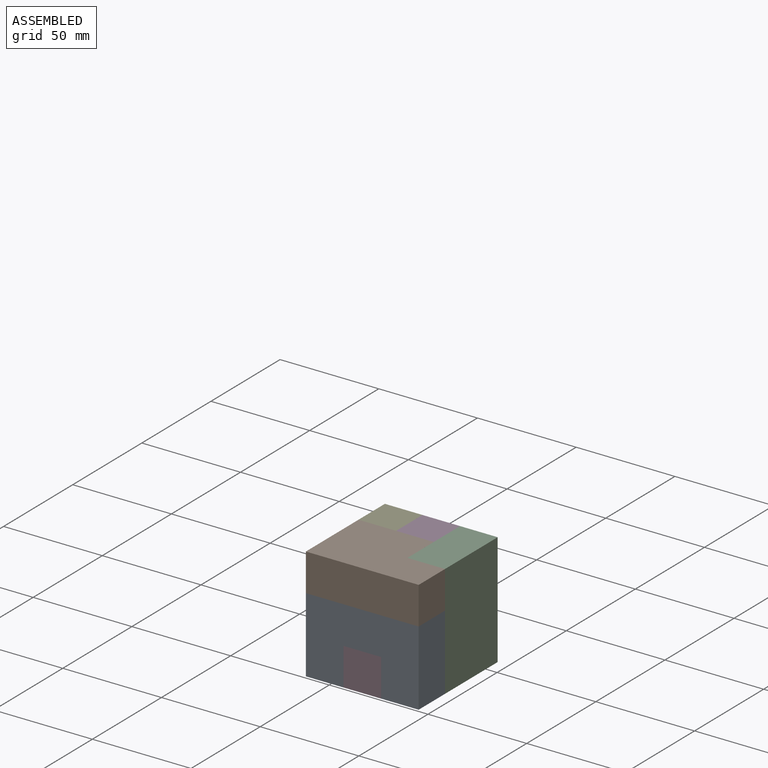
[diagram: assembled view]
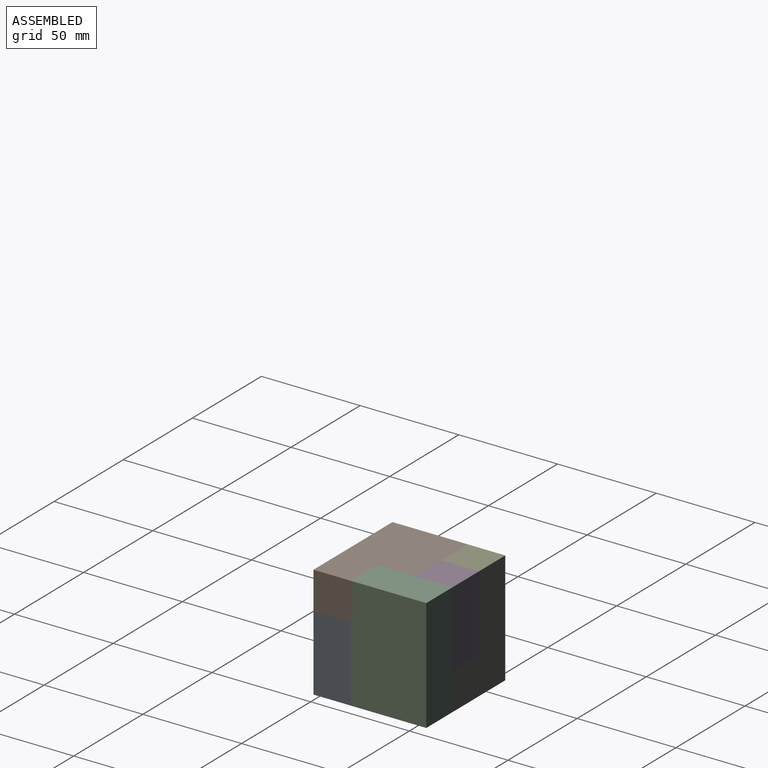
[diagram: assembled view, second angle]
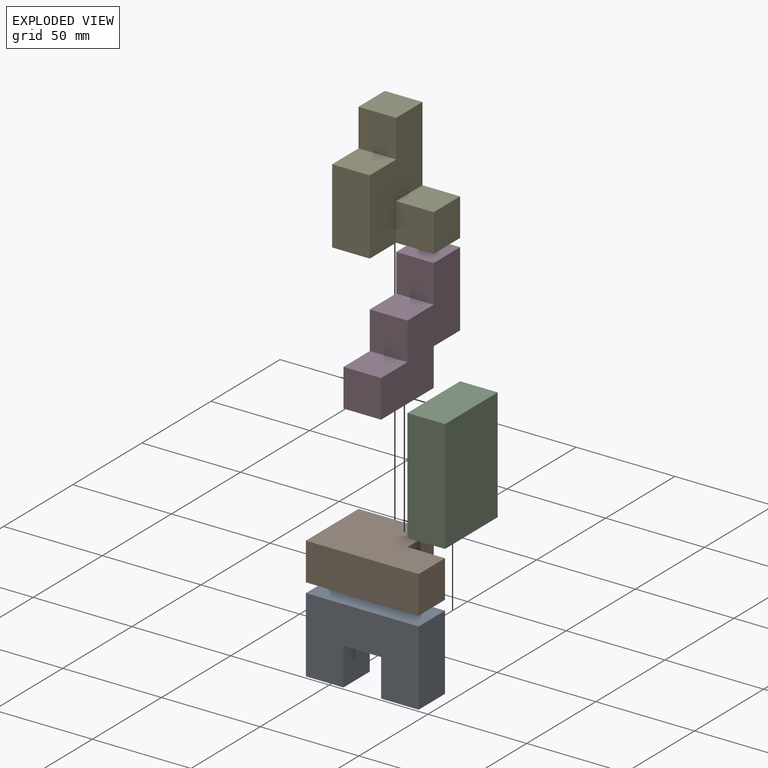
[diagram: exploded view]
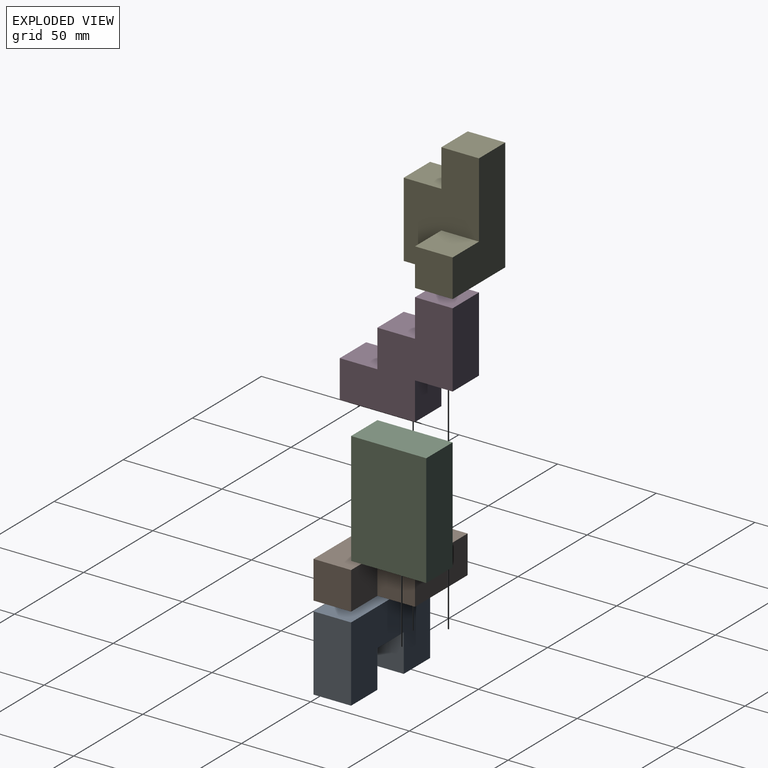
[diagram: exploded view, second angle]
ASSEMBLY  parts=5 mates=4
PART A: 10 faces, bbox 57.2x19.1x38.1 mm
  f0: plane 38.1x19.05mm, normal (-1,0,0), area 725.8mm2, adj f1,f7,f8,f9
  f1: plane 19.05x19.05mm, normal (0,0,-1), area 362.9mm2, adj f0,f2,f8,f9
  f2: plane 19.05x19.05mm, normal (1,0,0), area 362.9mm2, adj f1,f3,f8,f9
  f3: plane 19.05x19.05mm, normal (0,0,-1), area 362.9mm2, adj f2,f4,f8,f9
  f4: plane 19.05x19.05mm, normal (-1,0,0), area 362.9mm2, adj f3,f5,f8,f9
  f5: plane 19.05x19.05mm, normal (0,0,-1), area 362.9mm2, adj f4,f6,f8,f9
  f6: plane 38.1x19.05mm, normal (1,0,0), area 725.8mm2, adj f5,f7,f8,f9
  f7: plane 57.15x19.05mm, normal (0,0,1), area 1088.7mm2, adj f0,f6,f8,f9
  f8: plane 57.15x38.1mm, normal (0,-1,0), area 1814.5mm2, adj f0,f1,f2,f3,f4,f5,f6,f7
  f9: plane 57.15x38.1mm, normal (0,1,0), area 1814.5mm2, adj f0,f1,f2,f3,f4,f5,f6,f7
PART B: 8 faces, bbox 57.2x19.1x38.1 mm
  f0: plane 38.1x19.05mm, normal (-1,0,0), area 725.8mm2, adj f1,f5,f6,f7
  f1: plane 57.15x19.05mm, normal (0,0,-1), area 1088.7mm2, adj f0,f2,f6,f7
  f2: plane 19.05x19.05mm, normal (1,0,0), area 362.9mm2, adj f1,f3,f6,f7
  f3: plane 19.05x19.05mm, normal (0,0,1), area 362.9mm2, adj f2,f4,f6,f7
  f4: plane 19.05x19.05mm, normal (1,0,0), area 362.9mm2, adj f3,f5,f6,f7
  f5: plane 38.1x19.05mm, normal (0,0,1), area 725.8mm2, adj f0,f4,f6,f7
  f6: plane 57.15x38.1mm, normal (0,-1,0), area 1814.5mm2, adj f0,f1,f2,f3,f4,f5
  f7: plane 57.15x38.1mm, normal (0,1,0), area 1814.5mm2, adj f0,f1,f2,f3,f4,f5
PART C: 6 faces, bbox 38.1x19.1x57.2 mm
  f0: plane 57.15x19.05mm, normal (-1,0,0), area 1088.7mm2, adj f1,f3,f4,f5
  f1: plane 38.1x19.05mm, normal (0,0,-1), area 725.8mm2, adj f0,f2,f4,f5
  f2: plane 57.15x19.05mm, normal (1,0,0), area 1088.7mm2, adj f1,f3,f4,f5
  f3: plane 38.1x19.05mm, normal (0,0,1), area 725.8mm2, adj f0,f2,f4,f5
  f4: plane 57.15x38.1mm, normal (0,-1,0), area 2177.4mm2, adj f0,f1,f2,f3
  f5: plane 57.15x38.1mm, normal (0,1,0), area 2177.4mm2, adj f0,f1,f2,f3
PART D: 12 faces, bbox 57.2x19.1x57.2 mm
  f0: plane 38.1x19.05mm, normal (0,0,-1), area 725.8mm2, adj f1,f9,f10,f11
  f1: plane 19.05x19.05mm, normal (1,0,0), area 362.9mm2, adj f0,f2,f10,f11
  f2: plane 19.05x19.05mm, normal (0,0,-1), area 362.9mm2, adj f1,f3,f10,f11
  f3: plane 38.1x19.05mm, normal (1,0,0), area 725.8mm2, adj f2,f4,f10,f11
  f4: plane 19.05x19.05mm, normal (0,0,1), area 362.9mm2, adj f3,f5,f10,f11
  f5: plane 19.05x19.05mm, normal (-1,0,0), area 362.9mm2, adj f4,f6,f10,f11
  f6: plane 19.05x19.05mm, normal (0,0,1), area 362.9mm2, adj f5,f7,f10,f11
  f7: plane 19.05x19.05mm, normal (-1,0,0), area 362.9mm2, adj f6,f8,f10,f11
  f8: plane 19.05x19.05mm, normal (0,0,1), area 362.9mm2, adj f7,f9,f10,f11
  f9: plane 19.05x19.05mm, normal (-1,0,0), area 362.9mm2, adj f0,f8,f10,f11
  f10: plane 57.15x57.15mm, normal (0,-1,0), area 1814.5mm2, adj f0,f1,f2,f3,f4,f5,f6,f7
  f11: plane 57.15x57.15mm, normal (0,1,0), area 1814.5mm2, adj f0,f1,f2,f3,f4,f5,f6,f7
PART E: 11 faces, bbox 38.1x38.1x57.2 mm
  f0: plane 19.05x19.05mm, normal (0,-1,0), area 362.9mm2, adj f2,f6,f7,f9
  f1: plane 19.05x19.05mm, normal (0,-1,0), area 362.9mm2, adj f3,f4,f5,f6
  f2: plane 57.15x38.1mm, normal (-1,0,0), area 1814.5mm2, adj f0,f3,f7,f8,f9,f10
  f3: plane 38.1x38.1mm, normal (0,0,-1), area 1088.7mm2, adj f1,f2,f4,f6,f8,f10
  f4: plane 19.05x19.05mm, normal (1,0,0), area 362.9mm2, adj f1,f3,f5,f8
  f5: plane 19.05x19.05mm, normal (0,0,1), area 362.9mm2, adj f1,f4,f6,f8
  f6: plane 57.15x38.1mm, normal (1,0,0), area 1451.6mm2, adj f0,f1,f3,f5,f7,f8,f9,f10
  f7: plane 19.05x19.05mm, normal (0,0,1), area 362.9mm2, adj f0,f2,f6,f8
  f8: plane 57.15x38.1mm, normal (0,1,0), area 1451.6mm2, adj f2,f3,f4,f5,f6,f7
  f9: plane 19.05x19.05mm, normal (0,0,1), area 362.9mm2, adj f0,f2,f6,f10
  f10: plane 38.1x19.05mm, normal (0,-1,0), area 725.8mm2, adj f2,f3,f6,f9
PLACE A t=(89.01,-32.19,68.3)mm
PLACE B rot(axis=(-1,0,0),90deg) t=(89.01,-51.24,89.54)mm
PLACE C rot(axis=(0,0,1),90deg) t=(127.11,-32.19,51.44)mm
PLACE D rot(axis=(0,0,1),90deg) t=(108.06,-51.24,51.44)mm
PLACE E t=(89.01,-13.14,51.44)mm
MATE fastened E.f5 <-> D.f2  axis (0,0,-1) through (127.11,5.91,70.49)mm
MATE fastened A.f7 <-> B.f7  axis (0,0,1) through (146.16,-51.24,89.54)mm
MATE fastened C.f1 <-> A.f5  axis (0,0,1) through (127.11,-32.19,51.44)mm
MATE fastened A.f1 <-> D.f0  axis (0,0,1) through (108.06,-51.24,51.44)mm
